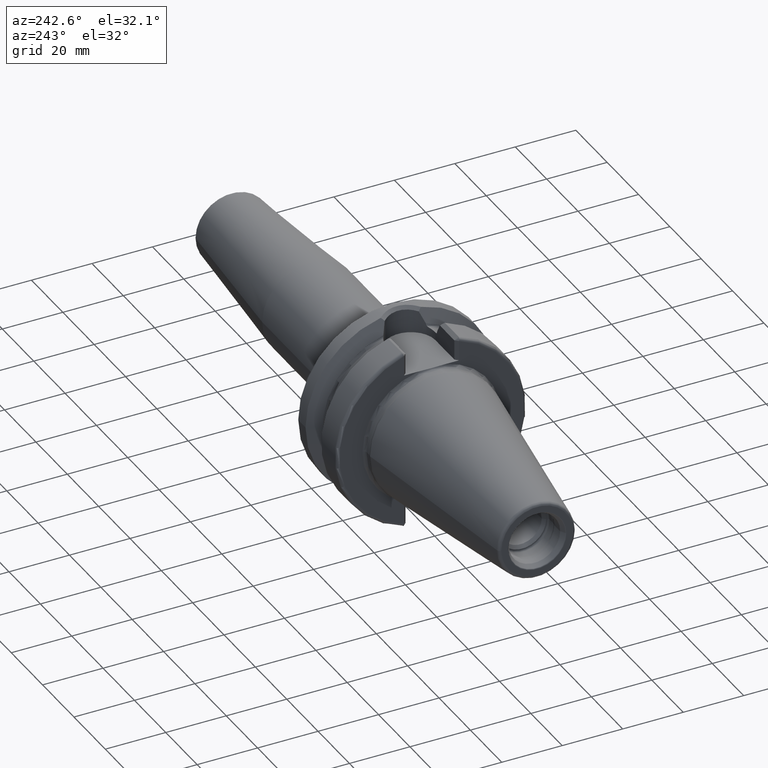
[diagram: clean part render]
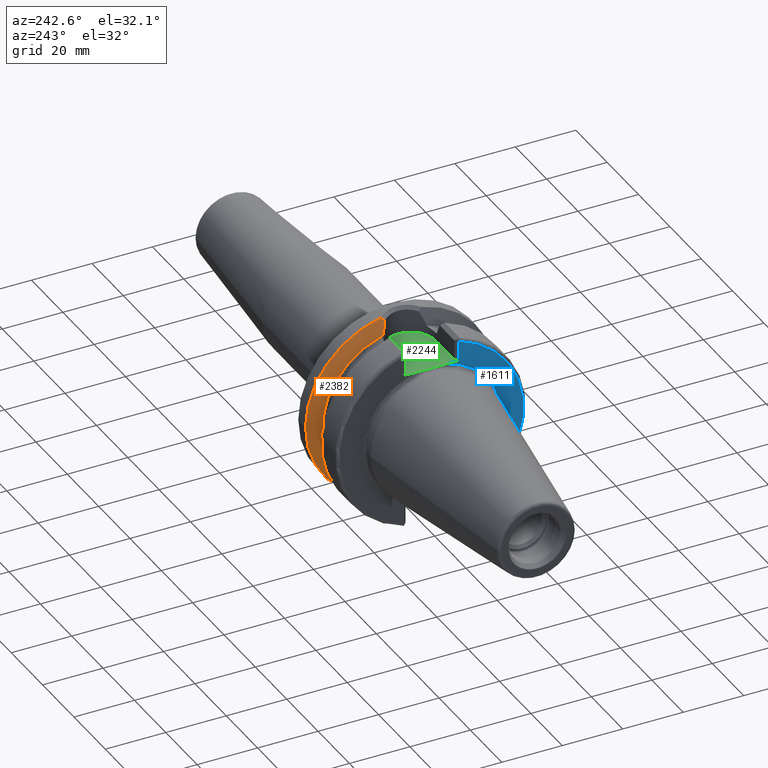
[diagram: same view with three faces highlighted in distinct colors, each labeled with its STEP entity id]
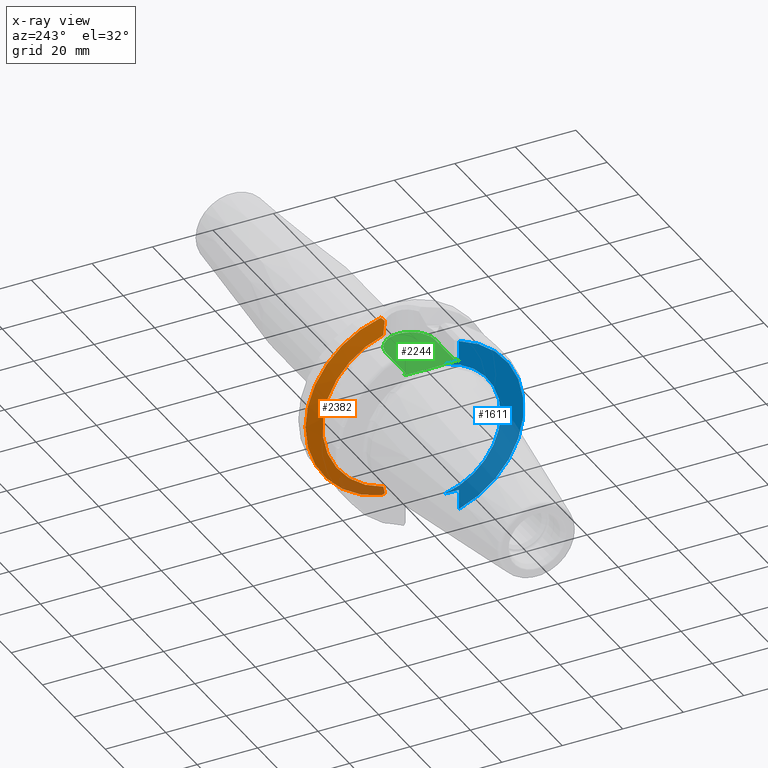
[diagram: x-ray of the same camera — body ghosted, the three highlighted faces saturated]
A machine part, auxiliary view with three faces highlighted in distinct colors.
The next image is the same camera in x-ray (body ghosted, the three faces saturated) — at least one of them is partly hidden behind the body in this view.
Their STEP definitions:

[orange] entity #2382 — the highlighted conical surface has half-angle 60 deg.
#264=CARTESIAN_POINT('',(2.162727746897E1,0.E0,0.E0));
#265=DIRECTION('',(1.E0,0.E0,0.E0));
#266=DIRECTION('',(0.E0,2.025221356988E-1,-9.792776851088E-1));
#267=AXIS2_PLACEMENT_3D('',#264,#265,#266);
#413=CARTESIAN_POINT('',(1.91375E1,7.047603759435E0,-2.624530807186E1));
#414=CARTESIAN_POINT('',(1.926924659829E1,6.973155642658E0,-2.650157525064E1));
#415=CARTESIAN_POINT('',(1.953215093318E1,6.814880472402E0,-2.701339248784E1));
#416=CARTESIAN_POINT('',(1.992520758926E1,6.546145713789E0,-2.777975883833E1));
#417=CARTESIAN_POINT('',(2.031299763175E1,6.245544639533E0,-2.853691128968E1));
#418=CARTESIAN_POINT('',(2.069290284024E1,5.911695129812E0,-2.927960564408E1));
#419=CARTESIAN_POINT('',(2.093808029853E1,5.667101824111E0,-2.975945931955E1));
#420=CARTESIAN_POINT('',(2.105861623912E1,5.538622599637E0,-2.999548645237E1));
#488=CARTESIAN_POINT('',(2.097101805574E1,5.630538071564E0,2.982397761288E1));
#489=CARTESIAN_POINT('',(2.082604881782E1,5.780282855198E0,2.954017722398E1));
#490=CARTESIAN_POINT('',(2.053095055184E1,6.062081832034E0,2.896282820239E1));
#491=CARTESIAN_POINT('',(2.007321533351E1,6.438417817754E0,2.806855111877E1));
#492=CARTESIAN_POINT('',(1.960693883943E1,6.768577999667E0,2.715904469241E1));
#493=CARTESIAN_POINT('',(1.929432982957E1,6.958981467721E0,2.655036595187E1));
#494=CARTESIAN_POINT('',(1.91375E1,7.047603759435E0,2.624530807186E1));
#763=CARTESIAN_POINT('',(1.91375E1,0.E0,0.E0));
#764=DIRECTION('',(-1.E0,0.E0,0.E0));
#765=DIRECTION('',(0.E0,2.593406914876E-1,9.657859005694E-1));
#766=AXIS2_PLACEMENT_3D('',#763,#764,#765);
#780=CARTESIAN_POINT('',(2.105861623912E1,5.538622599637E0,-2.999548645237E1));
#781=CARTESIAN_POINT('',(2.111989614702E1,5.630136295378E0,-3.008652275541E1));
#782=CARTESIAN_POINT('',(2.124372313828E1,5.814239626407E0,-3.027008886976E1));
#783=CARTESIAN_POINT('',(2.143328453670E1,6.093672457464E0,-3.054994203428E1));
#784=CARTESIAN_POINT('',(2.156218936675E1,6.282134222929E0,-3.073948617248E1));
#785=CARTESIAN_POINT('',(2.162727746897E1,6.376915747817E0,-3.083500610986E1));
#787=CARTESIAN_POINT('',(2.162727746897E1,0.E0,0.E0));
#788=DIRECTION('',(1.E0,0.E0,0.E0));
#789=DIRECTION('',(0.E0,1.E0,0.E0));
#790=AXIS2_PLACEMENT_3D('',#787,#788,#789);
#950=CARTESIAN_POINT('',(2.162727746897E1,6.599266458023E0,3.078818504664E1));
#951=CARTESIAN_POINT('',(2.155180167283E1,6.489456770420E0,3.067802487357E1));
#952=CARTESIAN_POINT('',(2.140255803858E1,6.271303447789E0,3.045972360003E1));
#953=CARTESIAN_POINT('',(2.118379105962E1,5.948395649424E0,3.013829699472E1));
#954=CARTESIAN_POINT('',(2.104137401503E1,5.736018183883E0,2.992807656128E1));
#955=CARTESIAN_POINT('',(2.097101805574E1,5.630538071564E0,2.982397761288E1));
#1210=CARTESIAN_POINT('',(1.91375E1,7.047603759435E0,2.624530807186E1));
#1211=CARTESIAN_POINT('',(1.91375E1,7.047603759435E0,-2.624530807186E1));
#1212=VERTEX_POINT('',#1210);
#1213=VERTEX_POINT('',#1211);
#1226=CARTESIAN_POINT('',(2.162727746897E1,3.14875E1,0.E0));
#1227=CARTESIAN_POINT('',(2.162727746897E1,6.599266458023E0,3.078818504664E1));
#1228=VERTEX_POINT('',#1226);
#1229=VERTEX_POINT('',#1227);
#1240=CARTESIAN_POINT('',(2.162727746897E1,6.376915747817E0,-3.083500610986E1));
#1241=VERTEX_POINT('',#1240);
#1331=VERTEX_POINT('',#488);
#1339=VERTEX_POINT('',#420);
#2365=CARTESIAN_POINT('',(2.038238873448E1,0.E0,0.E0));
#2366=DIRECTION('',(1.E0,0.E0,0.E0));
#2367=DIRECTION('',(0.E0,-1.E0,0.E0));
#2368=AXIS2_PLACEMENT_3D('',#2365,#2366,#2367);
#2369=CONICAL_SURFACE('',#2368,2.933128946210E1,6.E1);
#2370=ORIENTED_EDGE('',*,*,#1907,.T.);
#2371=ORIENTED_EDGE('',*,*,#1882,.T.);
#2373=ORIENTED_EDGE('',*,*,#2372,.T.);
#2374=ORIENTED_EDGE('',*,*,#1763,.T.);
#2376=ORIENTED_EDGE('',*,*,#2375,.T.);
#2378=ORIENTED_EDGE('',*,*,#2377,.T.);
#2379=ORIENTED_EDGE('',*,*,#1970,.T.);
#2380=EDGE_LOOP('',(#2370,#2371,#2373,#2374,#2376,#2378,#2379));
#2381=FACE_OUTER_BOUND('',#2380,.F.);
#2382=ADVANCED_FACE('',(#2381),#2369,.T.);
#268=CIRCLE('',#267,3.14875E1);
#421=B_SPLINE_CURVE_WITH_KNOTS('',3,(#413,#414,#415,#416,#417,#418,#419,#420),
.UNSPECIFIED.,.F.,.F.,(4,1,1,1,1,4),(0.E0,2.E-1,4.E-1,6.E-1,8.E-1,1.E0),
.UNSPECIFIED.);
#495=B_SPLINE_CURVE_WITH_KNOTS('',3,(#488,#489,#490,#491,#492,#493,#494),
.UNSPECIFIED.,.F.,.F.,(4,1,1,1,4),(0.E0,2.5E-1,5.E-1,7.5E-1,1.E0),
.UNSPECIFIED.);
#767=CIRCLE('',#766,2.717507892421E1);
#786=B_SPLINE_CURVE_WITH_KNOTS('',3,(#780,#781,#782,#783,#784,#785),
.UNSPECIFIED.,.F.,.F.,(4,1,1,4),(0.E0,3.333333333333E-1,6.666666666667E-1,1.E0),
.UNSPECIFIED.);
#791=CIRCLE('',#790,3.14875E1);
#956=B_SPLINE_CURVE_WITH_KNOTS('',3,(#950,#951,#952,#953,#954,#955),
.UNSPECIFIED.,.F.,.F.,(4,1,1,4),(0.E0,3.333333333333E-1,6.666666666667E-1,1.E0),
.UNSPECIFIED.);
#1763=EDGE_CURVE('',#1241,#1228,#268,.T.);
#1882=EDGE_CURVE('',#1213,#1339,#421,.T.);
#1907=EDGE_CURVE('',#1212,#1213,#767,.T.);
#1970=EDGE_CURVE('',#1331,#1212,#495,.T.);
#2372=EDGE_CURVE('',#1339,#1241,#786,.T.);
#2375=EDGE_CURVE('',#1228,#1229,#791,.T.);
#2377=EDGE_CURVE('',#1229,#1331,#956,.T.);

[blue] entity #1611 — the highlighted planar face has unit normal (1, 0, 0).
#111=CARTESIAN_POINT('',(2.E0,0.E0,0.E0));
#112=DIRECTION('',(-1.E0,0.E0,0.E0));
#113=DIRECTION('',(0.E0,-1.918678763451E-1,-9.814207650273E-1));
#114=AXIS2_PLACEMENT_3D('',#111,#112,#113);
#135=DIRECTION('',(-2.137863157207E-6,2.138092595446E-6,-9.999999999954E-1));
#136=VECTOR('',#135,6.649288203879E0);
#137=CARTESIAN_POINT('',(2.E0,-9.095E0,-2.245E1));
#138=LINE('',#137,#136);
#139=DIRECTION('',(4.462834027234E-6,-4.463945838797E-6,-9.999999999801E-1));
#140=VECTOR('',#139,6.649296399172E0);
#141=CARTESIAN_POINT('',(1.999970325294E0,-9.094970317901E0,2.909929639904E1));
#142=LINE('',#141,#140);
#597=CARTESIAN_POINT('',(1.999985784732E0,-9.094985783206E0,-2.909928820385E1));
#608=CARTESIAN_POINT('',(2.E0,0.E0,0.E0));
#609=DIRECTION('',(-1.E0,0.E0,0.E0));
#610=DIRECTION('',(0.E0,-2.983190208830E-1,-9.544662182495E-1));
#611=AXIS2_PLACEMENT_3D('',#608,#609,#610);
#684=DIRECTION('',(0.E0,1.E0,0.E0));
#685=VECTOR('',#684,4.706022328605E0);
#686=CARTESIAN_POINT('',(2.E0,-9.095E0,2.245E1));
#687=LINE('',#686,#685);
#725=CARTESIAN_POINT('',(2.E0,0.E0,0.E0));
#726=DIRECTION('',(1.E0,0.E0,0.E0));
#727=DIRECTION('',(0.E0,-1.918678763451E-1,9.814207650273E-1));
#728=AXIS2_PLACEMENT_3D('',#725,#726,#727);
#750=DIRECTION('',(0.E0,-1.E0,0.E0));
#751=VECTOR('',#750,4.706022328605E0);
#752=CARTESIAN_POINT('',(2.E0,-4.388977671395E0,-2.245E1));
#753=LINE('',#752,#751);
#1248=CARTESIAN_POINT('',(2.E0,-2.2875E1,0.E0));
#1250=VERTEX_POINT('',#1248);
#1314=CARTESIAN_POINT('',(2.E0,-4.388977671395E0,2.245E1));
#1315=VERTEX_POINT('',#1314);
#1322=CARTESIAN_POINT('',(2.E0,-4.388977671395E0,-2.245E1));
#1323=VERTEX_POINT('',#1322);
#1352=CARTESIAN_POINT('',(1.999970325294E0,-9.094970317901E0,2.909929639904E1));
#1353=CARTESIAN_POINT('',(2.E0,-9.095E0,2.245E1));
#1354=VERTEX_POINT('',#1352);
#1355=VERTEX_POINT('',#1353);
#1377=VERTEX_POINT('',#597);
#1379=CARTESIAN_POINT('',(2.E0,-9.095E0,-2.245E1));
#1380=VERTEX_POINT('',#1379);
#1591=CARTESIAN_POINT('',(2.E0,0.E0,0.E0));
#1592=DIRECTION('',(1.E0,0.E0,0.E0));
#1593=DIRECTION('',(0.E0,-1.E0,0.E0));
#1594=AXIS2_PLACEMENT_3D('',#1591,#1592,#1593);
#1595=PLANE('',#1594);
#1597=ORIENTED_EDGE('',*,*,#1596,.F.);
#1599=ORIENTED_EDGE('',*,*,#1598,.F.);
#1600=ORIENTED_EDGE('',*,*,#1563,.T.);
#1602=ORIENTED_EDGE('',*,*,#1601,.F.);
#1604=ORIENTED_EDGE('',*,*,#1603,.F.);
#1606=ORIENTED_EDGE('',*,*,#1605,.F.);
#1608=ORIENTED_EDGE('',*,*,#1607,.F.);
#1609=EDGE_LOOP('',(#1597,#1599,#1600,#1602,#1604,#1606,#1608));
#1610=FACE_OUTER_BOUND('',#1609,.F.);
#1611=ADVANCED_FACE('',(#1610),#1595,.F.);
#115=CIRCLE('',#114,2.2875E1);
#612=CIRCLE('',#611,3.04875E1);
#729=CIRCLE('',#728,2.2875E1);
#1563=EDGE_CURVE('',#1323,#1250,#115,.T.);
#1596=EDGE_CURVE('',#1380,#1377,#138,.T.);
#1598=EDGE_CURVE('',#1323,#1380,#753,.T.);
#1601=EDGE_CURVE('',#1315,#1250,#729,.T.);
#1603=EDGE_CURVE('',#1355,#1315,#687,.T.);
#1605=EDGE_CURVE('',#1354,#1355,#142,.T.);
#1607=EDGE_CURVE('',#1377,#1354,#612,.T.);

[green] entity #2244 — the highlighted planar face has unit normal (0, 0, 1).
#680=DIRECTION('',(1.E0,0.E0,0.E0));
#681=VECTOR('',#680,1.2155E1);
#682=CARTESIAN_POINT('',(3.E0,-8.095E0,2.245E1));
#683=LINE('',#682,#681);
#684=DIRECTION('',(0.E0,1.E0,0.E0));
#685=VECTOR('',#684,4.706022328605E0);
#686=CARTESIAN_POINT('',(2.E0,-9.095E0,2.245E1));
#687=LINE('',#686,#685);
#688=DIRECTION('',(0.E0,1.E0,0.E0));
#689=VECTOR('',#688,4.706022328605E0);
#690=CARTESIAN_POINT('',(2.E0,4.388977671395E0,2.245E1));
#691=LINE('',#690,#689);
#692=DIRECTION('',(-1.E0,0.E0,0.E0));
#693=VECTOR('',#692,1.2155E1);
#694=CARTESIAN_POINT('',(1.5155E1,8.095E0,2.245E1));
#695=LINE('',#694,#693);
#696=CARTESIAN_POINT('',(1.5155E1,0.E0,2.245E1));
#697=DIRECTION('',(0.E0,0.E0,1.E0));
#698=DIRECTION('',(0.E0,-1.E0,0.E0));
#699=AXIS2_PLACEMENT_3D('',#696,#697,#698);
#705=DIRECTION('',(7.071067811865E-1,7.071067811865E-1,0.E0));
#706=VECTOR('',#705,1.414213562373E0);
#707=CARTESIAN_POINT('',(2.E0,-9.095E0,2.245E1));
#708=LINE('',#707,#706);
#714=CARTESIAN_POINT('',(2.E0,-4.388977671395E0,2.245E1));
#715=CARTESIAN_POINT('',(2.E0,-3.970864393558E0,2.245E1));
#716=CARTESIAN_POINT('',(1.981114905487E0,-3.134790252725E0,2.245E1));
#717=CARTESIAN_POINT('',(1.935909306649E0,-1.881114481277E0,2.245E1));
#718=CARTESIAN_POINT('',(1.903922826077E0,-6.271978192649E-1,2.245E1));
#719=CARTESIAN_POINT('',(1.903921553166E0,6.271174205746E-1,2.245E1));
#720=CARTESIAN_POINT('',(1.935907277499E0,1.881058976319E0,2.245E1));
#721=CARTESIAN_POINT('',(1.981114329557E0,3.134769380755E0,2.245E1));
#722=CARTESIAN_POINT('',(2.E0,3.970858027314E0,2.245E1));
#723=CARTESIAN_POINT('',(2.E0,4.388977671395E0,2.245E1));
#730=DIRECTION('',(-7.071067811865E-1,7.071067811865E-1,0.E0));
#731=VECTOR('',#730,1.414213562373E0);
#732=CARTESIAN_POINT('',(3.E0,8.095E0,2.245E1));
#733=LINE('',#732,#731);
#1308=CARTESIAN_POINT('',(1.5155E1,-8.095E0,2.245E1));
#1309=CARTESIAN_POINT('',(1.5155E1,8.095E0,2.245E1));
#1310=VERTEX_POINT('',#1308);
#1311=VERTEX_POINT('',#1309);
#1312=CARTESIAN_POINT('',(2.E0,4.388977671395E0,2.245E1));
#1313=VERTEX_POINT('',#1312);
#1314=CARTESIAN_POINT('',(2.E0,-4.388977671395E0,2.245E1));
#1315=VERTEX_POINT('',#1314);
#1349=CARTESIAN_POINT('',(3.E0,-8.095E0,2.245E1));
#1351=VERTEX_POINT('',#1349);
#1353=CARTESIAN_POINT('',(2.E0,-9.095E0,2.245E1));
#1355=VERTEX_POINT('',#1353);
#1362=CARTESIAN_POINT('',(2.E0,9.095E0,2.245E1));
#1363=VERTEX_POINT('',#1362);
#1364=CARTESIAN_POINT('',(3.E0,8.095E0,2.245E1));
#1366=VERTEX_POINT('',#1364);
#2226=CARTESIAN_POINT('',(0.E0,0.E0,2.245E1));
#2227=DIRECTION('',(0.E0,0.E0,1.E0));
#2228=DIRECTION('',(1.E0,0.E0,0.E0));
#2229=AXIS2_PLACEMENT_3D('',#2226,#2227,#2228);
#2230=PLANE('',#2229);
#2231=ORIENTED_EDGE('',*,*,#1992,.F.);
#2233=ORIENTED_EDGE('',*,*,#2232,.F.);
#2234=ORIENTED_EDGE('',*,*,#1603,.T.);
#2236=ORIENTED_EDGE('',*,*,#2235,.T.);
#2237=ORIENTED_EDGE('',*,*,#1581,.T.);
#2239=ORIENTED_EDGE('',*,*,#2238,.F.);
#2240=ORIENTED_EDGE('',*,*,#2217,.F.);
#2241=ORIENTED_EDGE('',*,*,#1963,.F.);
#2242=EDGE_LOOP('',(#2231,#2233,#2234,#2236,#2237,#2239,#2240,#2241));
#2243=FACE_OUTER_BOUND('',#2242,.F.);
#2244=ADVANCED_FACE('',(#2243),#2230,.T.);
#700=CIRCLE('',#699,8.095E0);
#724=B_SPLINE_CURVE_WITH_KNOTS('',3,(#714,#715,#716,#717,#718,#719,#720,#721,
#722,#723),.UNSPECIFIED.,.F.,.F.,(4,1,1,1,1,1,1,4),(0.E0,1.428571428571E-1,
2.857142857143E-1,4.285714285714E-1,5.714285714286E-1,7.142857142857E-1,
8.571428571429E-1,1.E0),.UNSPECIFIED.);
#1581=EDGE_CURVE('',#1313,#1363,#691,.T.);
#1603=EDGE_CURVE('',#1355,#1315,#687,.T.);
#1963=EDGE_CURVE('',#1310,#1311,#700,.T.);
#1992=EDGE_CURVE('',#1351,#1310,#683,.T.);
#2217=EDGE_CURVE('',#1311,#1366,#695,.T.);
#2232=EDGE_CURVE('',#1355,#1351,#708,.T.);
#2235=EDGE_CURVE('',#1315,#1313,#724,.T.);
#2238=EDGE_CURVE('',#1366,#1363,#733,.T.);